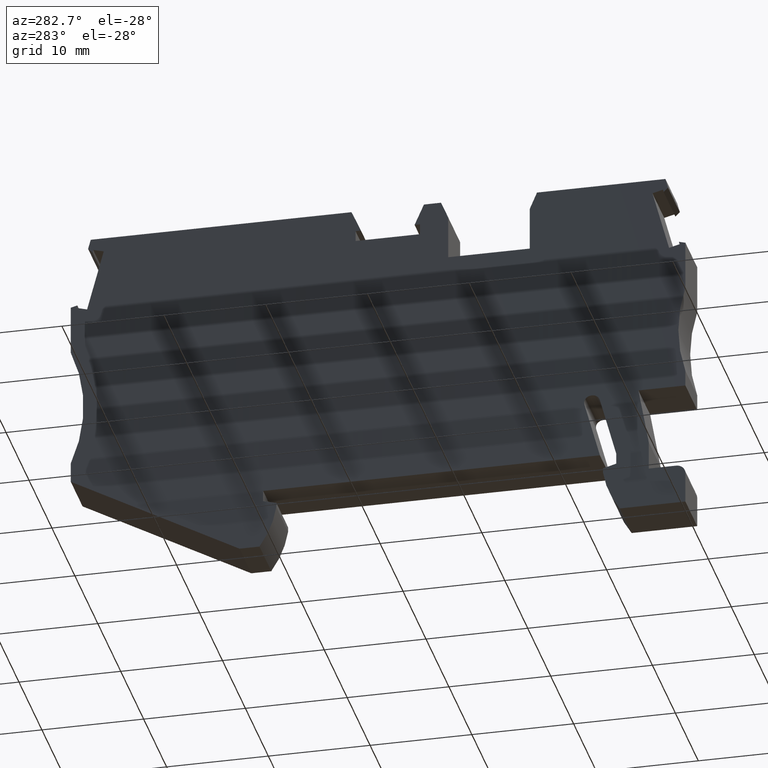
[diagram: clean part render]
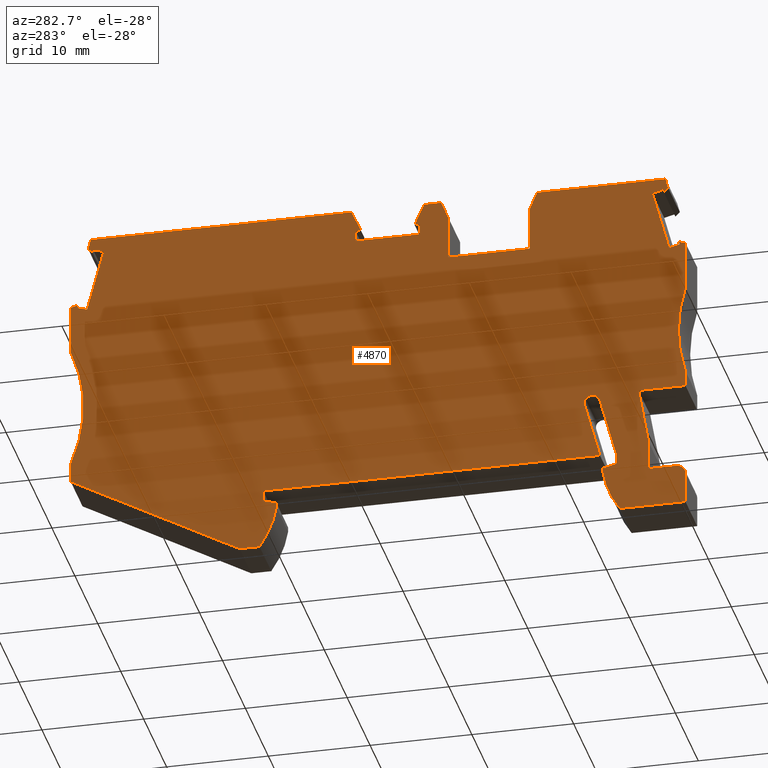
[diagram: same view with one face highlighted and labeled with its STEP entity id]
A machine part, auxiliary view. The second image highlights one B-rep face of the part: STEP entity #4870.
In plain terms, the highlighted planar face has unit normal (-1, 0, -0).
Its self-contained STEP definition (entity closure, byte-faithful):
#10=CARTESIAN_POINT('',(3.5299232216756,-12.7935680000014,48.52));
#20=DIRECTION('',(-0.,-0.,-1.));
#30=DIRECTION('',(0.,-1.,0.));
#40=AXIS2_PLACEMENT_3D('',#10,#20,#30);
#50=PLANE('',#40);
#60=CARTESIAN_POINT('',(-29.7042555077705,-1.07406238320151,
48.5199999999807));
#70=DIRECTION('',(-0.707106781187495,0.7071067811856,
-2.89812213062084E-13));
#80=VECTOR('',#70,1.);
#90=LINE('',#60,#80);
#100=CARTESIAN_POINT('',(-20.2328552587296,-10.545462632217,
48.5199999999846));
#110=VERTEX_POINT('',#100);
#120=CARTESIAN_POINT('',(-20.6655984466218,-10.112719444326,
48.5199999999844));
#130=VERTEX_POINT('',#120);
#140=EDGE_CURVE('',#110,#130,#90,.T.);
#150=ORIENTED_EDGE('',*,*,#140,.T.);
#160=CARTESIAN_POINT('',(-27.8621918696385,-39.0185344922441,
48.5199999999815));
#170=DIRECTION('',(0.258819045101928,0.965925826289227,
1.06078632306589E-13));
#180=VECTOR('',#170,1.);
#190=LINE('',#160,#180);
#200=CARTESIAN_POINT('',(-20.1623768602535,-10.2824336682674,
48.5199999999846));
#210=VERTEX_POINT('',#200);
#220=EDGE_CURVE('',#110,#210,#190,.T.);
#230=ORIENTED_EDGE('',*,*,#220,.F.);
#240=CARTESIAN_POINT('',(-30.4949591286768,-7.51382659371657,
48.5199999999804));
#250=DIRECTION('',(0.9659258262891,-0.258819045102404,
3.95890845368853E-13));
#260=VECTOR('',#250,1.);
#270=LINE('',#240,#260);
#280=CARTESIAN_POINT('',(-19.1288362261241,-10.559370046527,
48.519999999985));
#290=VERTEX_POINT('',#280);
#300=EDGE_CURVE('',#210,#290,#270,.T.);
#310=ORIENTED_EDGE('',*,*,#300,.F.);
#320=CARTESIAN_POINT('',(-26.7897303657733,-39.1502162070814,
48.5199999999819));
#330=DIRECTION('',(0.258819045102715,0.965925826289017,
1.06078632306912E-13));
#340=VECTOR('',#330,1.);
#350=LINE('',#320,#340);
#360=CARTESIAN_POINT('',(-20.7658666863988,-16.6688508978053,
48.5199999999844));
#370=VERTEX_POINT('',#360);
#380=EDGE_CURVE('',#370,#290,#350,.T.);
#390=ORIENTED_EDGE('',*,*,#380,.T.);
#400=CARTESIAN_POINT('',(-31.2733580505129,-13.8533770723114,
48.5199999999801));
#410=DIRECTION('',(-0.96592582628901,0.25881904510274,
-3.95890845368816E-13));
#420=VECTOR('',#410,1.);
#430=LINE('',#400,#420);
#440=CARTESIAN_POINT('',(-21.7994073205272,-16.3919145195456,
48.519999999984));
#450=VERTEX_POINT('',#440);
#460=EDGE_CURVE('',#370,#450,#430,.T.);
#470=ORIENTED_EDGE('',*,*,#460,.F.);
#480=CARTESIAN_POINT('',(-27.862191869674,-39.0185344922397,
48.5199999999815));
#490=DIRECTION('',(0.258819045103217,0.965925826288882,
1.06078632307117E-13));
#500=VECTOR('',#490,1.);
#510=LINE('',#480,#500);
#520=CARTESIAN_POINT('',(-21.7289289220514,-16.1288855555983,
48.519999999984));
#530=VERTEX_POINT('',#520);
#540=EDGE_CURVE('',#450,#530,#510,.T.);
#550=ORIENTED_EDGE('',*,*,#540,.F.);
#560=CARTESIAN_POINT('',(-31.8869546500579,-18.8507203460334,
48.5199999999798));
#570=DIRECTION('',(-0.965925826290942,-0.258819045095529,
-3.95890845369296E-13));
#580=VECTOR('',#570,1.);
#590=LINE('',#560,#580);
#600=CARTESIAN_POINT('',(-22.3678327783232,-16.3000793279225,
48.5199999999837));
#610=VERTEX_POINT('',#600);
#620=EDGE_CURVE('',#530,#610,#590,.T.);
#630=ORIENTED_EDGE('',*,*,#620,.F.);
#640=CARTESIAN_POINT('',(-22.3678327783232,-39.6931569607141,
48.5199999999837));
#650=DIRECTION('',(-2.0122792321331E-15,1.,-6.02658177152644E-25));
#660=VECTOR('',#650,1.);
#670=LINE('',#640,#660);
#680=CARTESIAN_POINT('',(-22.3678327783232,-21.2000000000028,
48.5199999999837));
#690=VERTEX_POINT('',#680);
#700=EDGE_CURVE('',#690,#610,#670,.T.);
#710=ORIENTED_EDGE('',*,*,#700,.T.);
#720=CARTESIAN_POINT('',(-36.6769207995774,-25.7000000000028,
48.5199999999779));
#730=DIRECTION('',(-4.0985636225261E-13,6.0174940938983E-25,1.));
#740=DIRECTION('',(1.,-4.16333634234434E-17,4.0985636225261E-13));
#750=AXIS2_PLACEMENT_3D('',#720,#730,#740);
#760=CIRCLE('',#750,15.);
#770=CARTESIAN_POINT('',(-22.3678327783232,-30.2000000000027,
48.5199999999837));
#780=VERTEX_POINT('',#770);
#790=EDGE_CURVE('',#780,#690,#760,.T.);
#800=ORIENTED_EDGE('',*,*,#790,.T.);
#810=CARTESIAN_POINT('',(-22.3678327783232,-39.6931569607141,
48.5199999999837));
#820=DIRECTION('',(-2.0122792321331E-15,1.,-6.02658177152644E-25));
#830=VECTOR('',#820,1.);
#840=LINE('',#810,#830);
#850=CARTESIAN_POINT('',(-22.3678327783232,-31.8000000000004,
48.5199999999837));
#860=VERTEX_POINT('',#850);
#870=EDGE_CURVE('',#860,#780,#840,.T.);
#880=ORIENTED_EDGE('',*,*,#870,.T.);
#890=CARTESIAN_POINT('',(-33.4769262663789,-31.7999999999984,
48.5199999999792));
#900=DIRECTION('',(-1.,1.71709868546088E-13,-4.0985636225261E-13));
#910=VECTOR('',#900,1.);
#920=LINE('',#890,#910);
#930=CARTESIAN_POINT('',(-17.7559962686777,-31.8000000000011,
48.5199999999856));
#940=VERTEX_POINT('',#930);
#950=EDGE_CURVE('',#940,#860,#920,.T.);
#960=ORIENTED_EDGE('',*,*,#950,.T.);
#970=CARTESIAN_POINT('',(-19.2160104842459,-40.0801520771364,
48.519999999985));
#980=DIRECTION('',(0.17364817766693,0.984807753012208,
7.11708104097703E-14));
#990=VECTOR('',#980,1.);
#1000=LINE('',#970,#990);
#1010=CARTESIAN_POINT('',(-18.7678327783234,-37.5384100015805,
48.5199999999852));
#1020=VERTEX_POINT('',#1010);
#1030=EDGE_CURVE('',#1020,#940,#1000,.T.);
#1040=ORIENTED_EDGE('',*,*,#1030,.T.);
#1050=CARTESIAN_POINT('',(-18.7678327783234,-40.1351813799645,
48.5199999999852));
#1060=DIRECTION('',(4.16333634234434E-17,1.,-6.01812518262247E-25));
#1070=VECTOR('',#1060,1.);
#1080=LINE('',#1050,#1070);
#1090=CARTESIAN_POINT('',(-18.7678327783234,-40.4000000000018,
48.5199999999852));
#1100=VERTEX_POINT('',#1090);
#1110=EDGE_CURVE('',#1100,#1020,#1080,.T.);
#1120=ORIENTED_EDGE('',*,*,#1110,.T.);
#1130=CARTESIAN_POINT('',(-34.5328734901443,-40.4000000000018,
48.5199999999787));
#1140=DIRECTION('',(1.,-4.16333634234434E-17,4.0985636225261E-13));
#1150=VECTOR('',#1140,1.);
#1160=LINE('',#1130,#1150);
#1170=CARTESIAN_POINT('',(-21.4678327783234,-40.4000000000018,
48.5199999999841));
#1180=VERTEX_POINT('',#1170);
#1190=EDGE_CURVE('',#1180,#1100,#1160,.T.);
#1200=ORIENTED_EDGE('',*,*,#1190,.T.);
#1210=CARTESIAN_POINT('',(-21.4678327783234,-41.3000000000018,
48.5199999999841));
#1220=DIRECTION('',(4.0985636225261E-13,-6.0174940938983E-25,-1.));
#1230=DIRECTION('',(-0.992546151641322,0.121869343405148,
-4.06801355079613E-13));
#1240=AXIS2_PLACEMENT_3D('',#1210,#1220,#1230);
#1250=CIRCLE('',#1240,0.9);
#1260=CARTESIAN_POINT('',(-22.3678327783234,-41.3000000000018,
48.5199999999837));
#1270=VERTEX_POINT('',#1260);
#1280=EDGE_CURVE('',#1270,#1180,#1250,.T.);
#1290=ORIENTED_EDGE('',*,*,#1280,.T.);
#1300=CARTESIAN_POINT('',(-22.3678327783234,-39.6931569607141,
48.5199999999837));
#1310=DIRECTION('',(4.16333634234434E-17,1.,-6.01812518262247E-25));
#1320=VECTOR('',#1310,1.);
#1330=LINE('',#1300,#1320);
#1340=CARTESIAN_POINT('',(-22.3678327783234,-44.4000000000017,
48.5199999999837));
#1350=VERTEX_POINT('',#1340);
#1360=EDGE_CURVE('',#1350,#1270,#1330,.T.);
#1370=ORIENTED_EDGE('',*,*,#1360,.T.);
#1380=CARTESIAN_POINT('',(-35.024011733756,-44.4000000000022,
48.5199999999785));
#1390=DIRECTION('',(-1.,-3.81777942592976E-14,-4.0985636225261E-13));
#1400=VECTOR('',#1390,1.);
#1410=LINE('',#1380,#1400);
#1420=CARTESIAN_POINT('',(-15.9267764314559,-44.4000000000014,
48.5199999999864));
#1430=VERTEX_POINT('',#1420);
#1440=EDGE_CURVE('',#1430,#1350,#1410,.T.);
#1450=ORIENTED_EDGE('',*,*,#1440,.T.);
#1460=CARTESIAN_POINT('',(-23.6618054576996,-38.8846282117038,
48.5199999999832));
#1470=DIRECTION('',(-4.0985636225261E-13,6.0174940938983E-25,1.));
#1480=DIRECTION('',(1.,-4.16333634234434E-17,4.0985636225261E-13));
#1490=AXIS2_PLACEMENT_3D('',#1460,#1470,#1480);
#1500=CIRCLE('',#1490,9.499999999999);
#1510=CARTESIAN_POINT('',(-14.2678327783232,-40.3000000000023,
48.519999999987));
#1520=VERTEX_POINT('',#1510);
#1530=EDGE_CURVE('',#1430,#1520,#1500,.T.);
#1540=ORIENTED_EDGE('',*,*,#1530,.F.);
#1550=CARTESIAN_POINT('',(-14.2678327783235,-40.6877119040276,
48.519999999987));
#1560=DIRECTION('',(-4.16333634234434E-17,-1.,6.01812518262247E-25));
#1570=VECTOR('',#1560,1.);
#1580=LINE('',#1550,#1570);
#1590=CARTESIAN_POINT('',(-14.2678327783234,-39.8483339501618,
48.519999999987));
#1600=VERTEX_POINT('',#1590);
#1610=EDGE_CURVE('',#1600,#1520,#1580,.T.);
#1620=ORIENTED_EDGE('',*,*,#1610,.T.);
#1630=CARTESIAN_POINT('',(-33.8218110628268,-34.6088612600111,
48.519999999979));
#1640=DIRECTION('',(0.96592582628904,-0.258819045102626,
3.95890845368828E-13));
#1650=VECTOR('',#1640,1.);
#1660=LINE('',#1630,#1650);
#1670=CARTESIAN_POINT('',(-15.5678327783228,-39.5000000000013,
48.5199999999865));
#1680=VERTEX_POINT('',#1670);
#1690=EDGE_CURVE('',#1680,#1600,#1660,.T.);
#1700=ORIENTED_EDGE('',*,*,#1690,.T.);
#1710=CARTESIAN_POINT('',(-15.5678327783228,-40.5280919748539,
48.5199999999865));
#1720=DIRECTION('',(-4.16333634234434E-17,-1.,6.01812518262247E-25));
#1730=VECTOR('',#1720,1.);
#1740=LINE('',#1710,#1730);
#1750=CARTESIAN_POINT('',(-15.5678327783228,-38.3999999999967,
48.5199999999865));
#1760=VERTEX_POINT('',#1750);
#1770=EDGE_CURVE('',#1760,#1680,#1740,.T.);
#1780=ORIENTED_EDGE('',*,*,#1770,.T.);
#1790=CARTESIAN_POINT('',(-16.1198905892173,-40.4603077989502,
48.5199999999863));
#1800=DIRECTION('',(0.258819045103168,0.965925826288895,
1.06078632307097E-13));
#1810=VECTOR('',#1800,1.);
#1820=LINE('',#1790,#1810);
#1830=CARTESIAN_POINT('',(-13.9582471789261,-32.3929447639187,
48.5199999999872));
#1840=VERTEX_POINT('',#1830);
#1850=EDGE_CURVE('',#1760,#1840,#1820,.T.);
#1860=ORIENTED_EDGE('',*,*,#1850,.F.);
#1870=CARTESIAN_POINT('',(-13.1855065178943,-32.6000000000015,
48.5199999999875));
#1880=DIRECTION('',(-4.0985636225261E-13,6.0174940938983E-25,1.));
#1890=DIRECTION('',(1.,-4.16333634234434E-17,4.0985636225261E-13));
#1900=AXIS2_PLACEMENT_3D('',#1870,#1880,#1890);
#1910=CIRCLE('',#1900,0.799999999999994);
#1920=CARTESIAN_POINT('',(-12.9558416625091,-31.8336749683074,
48.5199999999876));
#1930=VERTEX_POINT('',#1920);
#1940=EDGE_CURVE('',#1930,#1840,#1910,.T.);
#1950=ORIENTED_EDGE('',*,*,#1940,.T.);
#1960=CARTESIAN_POINT('',(-13.1156930297903,-32.5151788497187,
48.5199999999875));
#1970=DIRECTION('',(-4.0985636225261E-13,6.0174940938983E-25,1.));
#1980=DIRECTION('',(1.,-4.16333634234434E-17,4.0985636225261E-13));
#1990=AXIS2_PLACEMENT_3D('',#1960,#1970,#1980);
#2000=CIRCLE('',#1990,0.700000000000186);
#2010=CARTESIAN_POINT('',(-12.4395449513857,-32.6963521812913,
48.5199999999878));
#2020=VERTEX_POINT('',#2010);
#2030=EDGE_CURVE('',#2020,#1930,#2000,.T.);
#2040=ORIENTED_EDGE('',*,*,#2030,.T.);
#2050=CARTESIAN_POINT('',(-14.5708539323043,-40.6505055846918,
48.5199999999869));
#2060=DIRECTION('',(0.258819045102995,0.965925826288942,
1.06078632307026E-13));
#2070=VECTOR('',#2060,1.);
#2080=LINE('',#2050,#2070);
#2090=CARTESIAN_POINT('',(-13.9678327783236,-38.4000000000014,
48.5199999999872));
#2100=VERTEX_POINT('',#2090);
#2110=EDGE_CURVE('',#2100,#2020,#2080,.T.);
#2120=ORIENTED_EDGE('',*,*,#2110,.T.);
#2130=CARTESIAN_POINT('',(-34.2873043683385,-38.4000000000014,
48.5199999999788));
#2140=DIRECTION('',(-1.,4.16333634234434E-17,-4.0985636225261E-13));
#2150=VECTOR('',#2140,1.);
#2160=LINE('',#2130,#2150);
#2170=CARTESIAN_POINT('',(19.1321672216769,-38.4000000000014,
48.5200000000007));
#2180=VERTEX_POINT('',#2170);
#2190=EDGE_CURVE('',#2180,#2100,#2160,.T.);
#2200=ORIENTED_EDGE('',*,*,#2190,.T.);
#2210=CARTESIAN_POINT('',(19.1321672216769,-44.7887162381846,
48.5200000000007));
#2220=DIRECTION('',(4.16333634234434E-17,1.,-6.01812518262247E-25));
#2230=VECTOR('',#2220,1.);
#2240=LINE('',#2210,#2230);
#2250=CARTESIAN_POINT('',(19.1321672216769,-39.5000000000013,
48.5200000000007));
#2260=VERTEX_POINT('',#2250);
#2270=EDGE_CURVE('',#2260,#2180,#2240,.T.);
#2280=ORIENTED_EDGE('',*,*,#2270,.T.);
#2290=CARTESIAN_POINT('',(-36.244252933995,-54.3380670604362,
48.519999999978));
#2300=DIRECTION('',(0.965925826289086,0.258819045102457,
3.95890845368535E-13));
#2310=VECTOR('',#2300,1.);
#2320=LINE('',#2290,#2310);
#2330=CARTESIAN_POINT('',(17.8321672216767,-39.8483339501617,
48.5200000000002));
#2340=VERTEX_POINT('',#2330);
#2350=EDGE_CURVE('',#2340,#2260,#2320,.T.);
#2360=ORIENTED_EDGE('',*,*,#2350,.T.);
#2370=CARTESIAN_POINT('',(17.8321672216734,-44.6290963090104,
48.5200000000002));
#2380=DIRECTION('',(6.90267287772883E-13,1.,-3.18920686762751E-25));
#2390=VECTOR('',#2380,1.);
#2400=LINE('',#2370,#2390);
#2410=CARTESIAN_POINT('',(17.8321672216764,-40.300000000002,
48.5200000000002));
#2420=VERTEX_POINT('',#2410);
#2430=EDGE_CURVE('',#2420,#2340,#2400,.T.);
#2440=ORIENTED_EDGE('',*,*,#2430,.T.);
#2450=CARTESIAN_POINT('',(27.2261399010528,-38.8846282117038,
48.520000000004));
#2460=DIRECTION('',(4.0985636225261E-13,-6.0174940938983E-25,-1.));
#2470=DIRECTION('',(-1.,4.16333634234434E-17,-4.0985636225261E-13));
#2480=AXIS2_PLACEMENT_3D('',#2450,#2460,#2470);
#2490=CIRCLE('',#2480,9.499999999999);
#2500=CARTESIAN_POINT('',(19.4911108748092,-44.4000000000014,
48.5200000000009));
#2510=VERTEX_POINT('',#2500);
#2520=EDGE_CURVE('',#2510,#2420,#2490,.T.);
#2530=ORIENTED_EDGE('',*,*,#2520,.T.);
#2540=CARTESIAN_POINT('',(-35.0240117337555,-44.3999999999983,
48.5199999999785));
#2550=DIRECTION('',(-1.,5.79536418854332E-14,-4.0985636225261E-13));
#2560=VECTOR('',#2550,1.);
#2570=LINE('',#2540,#2560);
#2580=CARTESIAN_POINT('',(21.449808277714,-44.4000000000015,
48.5200000000017));
#2590=VERTEX_POINT('',#2580);
#2600=EDGE_CURVE('',#2590,#2510,#2570,.T.);
#2610=ORIENTED_EDGE('',*,*,#2600,.T.);
#2620=CARTESIAN_POINT('',(-39.1523305504351,-78.0224586081626,
48.5199999999768));
#2630=DIRECTION('',(-0.874435210897321,-0.485142311021166,
-3.58392834563678E-13));
#2640=VECTOR('',#2630,1.);
#2650=LINE('',#2620,#2640);
#2660=CARTESIAN_POINT('',(38.0321672216769,-35.2,48.5200000000085));
#2670=VERTEX_POINT('',#2660);
#2680=EDGE_CURVE('',#2670,#2590,#2650,.T.);
#2690=ORIENTED_EDGE('',*,*,#2680,.T.);
#2700=CARTESIAN_POINT('',(38.0321672216769,-47.1093444392495,
48.5200000000085));
#2710=DIRECTION('',(-1.2490009027033E-16,-1.,6.01780963826038E-25));
#2720=VECTOR('',#2710,1.);
#2730=LINE('',#2700,#2720);
#2740=CARTESIAN_POINT('',(38.0321672216769,-33.2000000000027,
48.5200000000085));
#2750=VERTEX_POINT('',#2740);
#2760=EDGE_CURVE('',#2750,#2670,#2730,.T.);
#2770=ORIENTED_EDGE('',*,*,#2760,.T.);
#2780=CARTESIAN_POINT('',(51.7798943065444,-27.2000000000027,
48.5200000000141));
#2790=DIRECTION('',(-4.0985636225261E-13,6.0174940938983E-25,1.));
#2800=DIRECTION('',(1.,-4.16333634234434E-17,4.0985636225261E-13));
#2810=AXIS2_PLACEMENT_3D('',#2780,#2790,#2800);
#2820=CIRCLE('',#2810,15.);
#2830=CARTESIAN_POINT('',(38.032167221677,-21.2000000000025,
48.5200000000085));
#2840=VERTEX_POINT('',#2830);
#2850=EDGE_CURVE('',#2840,#2750,#2820,.T.);
#2860=ORIENTED_EDGE('',*,*,#2850,.T.);
#2870=CARTESIAN_POINT('',(38.032167221677,-47.1093444392495,
48.5200000000085));
#2880=DIRECTION('',(-9.71445146547012E-17,-1.,6.01793585600522E-25));
#2890=VECTOR('',#2880,1.);
#2900=LINE('',#2870,#2890);
#2910=CARTESIAN_POINT('',(38.032167221677,-16.3000793279236,
48.5200000000085));
#2920=VERTEX_POINT('',#2910);
#2930=EDGE_CURVE('',#2920,#2840,#2900,.T.);
#2940=ORIENTED_EDGE('',*,*,#2930,.T.);
#2950=CARTESIAN_POINT('',(-29.3566806060764,1.75670802586475,
48.5199999999809));
#2960=DIRECTION('',(-0.965925826290939,0.25881904509554,
-3.95890845369606E-13));
#2970=VECTOR('',#2960,1.);
#2980=LINE('',#2950,#2970);
#2990=CARTESIAN_POINT('',(37.3932633654051,-16.1288855555993,
48.5200000000082));
#3000=VERTEX_POINT('',#2990);
#3010=EDGE_CURVE('',#2920,#3000,#2980,.T.);
#3020=ORIENTED_EDGE('',*,*,#3010,.F.);
#3030=CARTESIAN_POINT('',(45.9551175602499,-48.0821604176267,
48.5200000000117));
#3040=DIRECTION('',(0.258819045103503,-0.965925826288806,
1.06078632308397E-13));
#3050=VECTOR('',#3040,1.);
#3060=LINE('',#3030,#3050);
#3070=CARTESIAN_POINT('',(37.4637417638807,-16.3919145195451,
48.5200000000082));
#3080=VERTEX_POINT('',#3070);
#3090=EDGE_CURVE('',#3000,#3080,#3060,.T.);
#3100=ORIENTED_EDGE('',*,*,#3090,.F.);
#3110=CARTESIAN_POINT('',(-33.9340399848912,-35.5228924805422,
48.519999999979));
#3120=DIRECTION('',(-0.965925826288933,-0.258819045103026,
-3.95890845368473E-13));
#3130=VECTOR('',#3120,1.);
#3140=LINE('',#3110,#3130);
#3150=CARTESIAN_POINT('',(36.4302011297517,-16.6688508978053,
48.5200000000078));
#3160=VERTEX_POINT('',#3150);
#3170=EDGE_CURVE('',#3080,#3160,#3140,.T.);
#3180=ORIENTED_EDGE('',*,*,#3170,.F.);
#3190=CARTESIAN_POINT('',(44.8096873663869,-47.9415192742283,
48.5200000000113));
#3200=DIRECTION('',(-0.258819045102705,0.965925826289019,
-1.0607863230807E-13));
#3210=VECTOR('',#3200,1.);
#3220=LINE('',#3190,#3210);
#3230=CARTESIAN_POINT('',(34.7931706694773,-10.5593700465282,
48.5200000000071));
#3240=VERTEX_POINT('',#3230);
#3250=EDGE_CURVE('',#3160,#3240,#3220,.T.);
#3260=ORIENTED_EDGE('',*,*,#3250,.F.);
#3270=CARTESIAN_POINT('',(-33.1026799550045,-28.7520083907735,
48.5199999999793));
#3280=DIRECTION('',(0.9659258262891,0.258819045102404,
3.95890845368541E-13));
#3290=VECTOR('',#3280,1.);
#3300=LINE('',#3270,#3290);
#3310=CARTESIAN_POINT('',(35.8267113036075,-10.2824336682684,
48.5200000000076));
#3320=VERTEX_POINT('',#3310);
#3330=EDGE_CURVE('',#3240,#3320,#3300,.T.);
#3340=ORIENTED_EDGE('',*,*,#3330,.F.);
#3350=CARTESIAN_POINT('',(45.9551175601883,-48.0821604176192,
48.5200000000117));
#3360=DIRECTION('',(0.258819045101928,-0.965925826289227,
1.06078632307752E-13));
#3370=VECTOR('',#3360,1.);
#3380=LINE('',#3350,#3370);
#3390=CARTESIAN_POINT('',(35.8971897020836,-10.5454626322177,
48.5200000000076));
#3400=VERTEX_POINT('',#3390);
#3410=EDGE_CURVE('',#3320,#3400,#3380,.T.);
#3420=ORIENTED_EDGE('',*,*,#3410,.F.);
#3430=CARTESIAN_POINT('',(3.56530628123769,-42.8773460529762,
48.5199999999943));
#3440=DIRECTION('',(0.707106781187503,0.707106781185593,
2.89812213061237E-13));
#3450=VECTOR('',#3440,1.);
#3460=LINE('',#3430,#3450);
#3470=CARTESIAN_POINT('',(36.3299328899757,-10.1127194443267,
48.5200000000078));
#3480=VERTEX_POINT('',#3470);
#3490=EDGE_CURVE('',#3400,#3480,#3460,.T.);
#3500=ORIENTED_EDGE('',*,*,#3490,.F.);
#3510=CARTESIAN_POINT('',(46.5224801796075,-48.1518237877173,
48.520000000012));
#3520=DIRECTION('',(0.258819045102926,-0.96592582628896,
1.06078632308161E-13));
#3530=VECTOR('',#3520,1.);
#3540=LINE('',#3510,#3530);
#3550=CARTESIAN_POINT('',(36.0719729923311,-9.15000000000319,
48.5200000000077));
#3560=VERTEX_POINT('',#3550);
#3570=EDGE_CURVE('',#3560,#3480,#3540,.T.);
#3580=ORIENTED_EDGE('',*,*,#3570,.T.);
#3590=CARTESIAN_POINT('',(-30.6958559619287,-9.1500000000032,
48.5199999999803));
#3600=DIRECTION('',(1.,-4.16333634234434E-17,4.0985636225261E-13));
#3610=VECTOR('',#3600,1.);
#3620=LINE('',#3590,#3610);
#3630=CARTESIAN_POINT('',(10.4418215966539,-9.15000000000318,
48.5199999999972));
#3640=VERTEX_POINT('',#3630);
#3650=EDGE_CURVE('',#3640,#3560,#3620,.T.);
#3660=ORIENTED_EDGE('',*,*,#3650,.T.);
#3670=CARTESIAN_POINT('',(-3.97307229660225,-41.9517495493763,
48.5199999999913));
#3680=DIRECTION('',(0.402320578212711,0.915498854366618,
1.64893648645078E-13));
#3690=VECTOR('',#3680,1.);
#3700=LINE('',#3670,#3690);
#3710=CARTESIAN_POINT('',(9.51676875459103,-11.2550000000016,
48.5199999999968));
#3720=VERTEX_POINT('',#3710);
#3730=EDGE_CURVE('',#3720,#3640,#3700,.T.);
#3740=ORIENTED_EDGE('',*,*,#3730,.T.);
#3750=CARTESIAN_POINT('',(-30.9543174626292,-11.2550000000016,
48.5199999999802));
#3760=DIRECTION('',(1.,-4.16333634234434E-17,4.0985636225261E-13));
#3770=VECTOR('',#3760,1.);
#3780=LINE('',#3750,#3770);
#3790=CARTESIAN_POINT('',(10.0446672216781,-11.2550000000016,
48.519999999997));
#3800=VERTEX_POINT('',#3790);
#3810=EDGE_CURVE('',#3720,#3800,#3780,.T.);
#3820=ORIENTED_EDGE('',*,*,#3810,.F.);
#3830=CARTESIAN_POINT('',(10.044667221678,-43.6729115409796,
48.519999999997));
#3840=DIRECTION('',(-4.16333634234434E-17,-1.,6.01812518262247E-25));
#3850=VECTOR('',#3840,1.);
#3860=LINE('',#3830,#3850);
#3870=CARTESIAN_POINT('',(10.0446672216781,-12.3250000000016,
48.519999999997));
#3880=VERTEX_POINT('',#3870);
#3890=EDGE_CURVE('',#3800,#3880,#3860,.T.);
#3900=ORIENTED_EDGE('',*,*,#3890,.F.);
#3910=CARTESIAN_POINT('',(-31.085696942795,-12.3249999999992,
48.5199999999801));
#3920=DIRECTION('',(-1.,5.80230308244722E-14,-4.0985636225261E-13));
#3930=VECTOR('',#3920,1.);
#3940=LINE('',#3910,#3930);
#3950=CARTESIAN_POINT('',(3.71966722167793,-12.3250000000012,
48.5199999999944));
#3960=VERTEX_POINT('',#3950);
#3970=EDGE_CURVE('',#3880,#3960,#3940,.T.);
#3980=ORIENTED_EDGE('',*,*,#3970,.F.);
#3990=CARTESIAN_POINT('',(3.71966722167791,-42.8962991932687,
48.5199999999944));
#4000=DIRECTION('',(4.16333634234434E-17,1.,-6.01812518262247E-25));
#4010=VECTOR('',#4000,1.);
#4020=LINE('',#3990,#4010);
#4030=CARTESIAN_POINT('',(3.71966722167794,-11.2550000000016,
48.5199999999944));
#4040=VERTEX_POINT('',#4030);
#4050=EDGE_CURVE('',#3960,#4040,#4020,.T.);
#4060=ORIENTED_EDGE('',*,*,#4050,.F.);
#4070=CARTESIAN_POINT('',(-30.9543174626292,-11.2550000000016,
48.5199999999802));
#4080=DIRECTION('',(1.,-4.16333634234434E-17,4.0985636225261E-13));
#4090=VECTOR('',#4080,1.);
#4100=LINE('',#4070,#4090);
#4110=CARTESIAN_POINT('',(4.24756568876353,-11.2550000000016,
48.5199999999946));
#4120=VERTEX_POINT('',#4110);
#4130=EDGE_CURVE('',#4040,#4120,#4100,.T.);
#4140=ORIENTED_EDGE('',*,*,#4130,.F.);
#4150=CARTESIAN_POINT('',(18.9756823710991,-44.7695023145185,
48.5200000000007));
#4160=DIRECTION('',(0.402320578211921,-0.915498854366966,
1.64893648645855E-13));
#4170=VECTOR('',#4160,1.);
#4180=LINE('',#4150,#4170);
#4190=CARTESIAN_POINT('',(3.32251284670286,-9.15000000000321,
48.5199999999942));
#4200=VERTEX_POINT('',#4190);
#4210=EDGE_CURVE('',#4200,#4120,#4180,.T.);
#4220=ORIENTED_EDGE('',*,*,#4210,.T.);
#4230=CARTESIAN_POINT('',(-30.6958559619292,-9.15000000000733,
48.5199999999803));
#4240=DIRECTION('',(-1.,-1.21000431896334E-13,-4.0985636225261E-13));
#4250=VECTOR('',#4240,1.);
#4260=LINE('',#4230,#4250);
#4270=CARTESIAN_POINT('',(1.65066694095809,-9.15000000000341,
48.5199999999936));
#4280=VERTEX_POINT('',#4270);
#4290=EDGE_CURVE('',#4200,#4280,#4260,.T.);
#4300=ORIENTED_EDGE('',*,*,#4290,.F.);
#4310=CARTESIAN_POINT('',(-11.8063846804754,-40.9899397279071,
48.519999999988));
#4320=DIRECTION('',(-0.389303997086923,-0.921109330021223,
-1.59558720055893E-13));
#4330=VECTOR('',#4320,1.);
#4340=LINE('',#4310,#4330);
#4350=CARTESIAN_POINT('',(0.932167221676593,-10.8500000000035,
48.5199999999933));
#4360=VERTEX_POINT('',#4350);
#4370=EDGE_CURVE('',#4280,#4360,#4340,.T.);
#4380=ORIENTED_EDGE('',*,*,#4370,.F.);
#4390=CARTESIAN_POINT('',(0.932167221676771,-42.5540372297518,
48.5199999999933));
#4400=DIRECTION('',(-5.49560397189452E-15,1.,-6.04078126782042E-25));
#4410=VECTOR('',#4400,1.);
#4420=LINE('',#4390,#4410);
#4430=CARTESIAN_POINT('',(0.932167221676622,-15.1500000000016,
48.5199999999933));
#4440=VERTEX_POINT('',#4430);
#4450=EDGE_CURVE('',#4440,#4360,#4420,.T.);
#4460=ORIENTED_EDGE('',*,*,#4450,.T.);
#4470=CARTESIAN_POINT('',(-31.432563327346,-15.1500000000016,
48.51999999998));
#4480=DIRECTION('',(-1.,4.16333634234434E-17,-4.0985636225261E-13));
#4490=VECTOR('',#4480,1.);
#4500=LINE('',#4470,#4490);
#4510=CARTESIAN_POINT('',(-7.06783277832309,-15.1500000000016,
48.51999999999));
#4520=VERTEX_POINT('',#4510);
#4530=EDGE_CURVE('',#4440,#4520,#4500,.T.);
#4540=ORIENTED_EDGE('',*,*,#4530,.F.);
#4550=CARTESIAN_POINT('',(-7.06783277832302,-41.5717607425285,
48.51999999999));
#4560=DIRECTION('',(2.72004641033163E-15,-1.,6.02948477965766E-25));
#4570=VECTOR('',#4560,1.);
#4580=LINE('',#4550,#4570);
#4590=CARTESIAN_POINT('',(-7.06783277832313,-10.8500000000033,
48.51999999999));
#4600=VERTEX_POINT('',#4590);
#4610=EDGE_CURVE('',#4600,#4520,#4580,.T.);
#4620=ORIENTED_EDGE('',*,*,#4610,.T.);
#4630=CARTESIAN_POINT('',(6.62732765293345,-43.2533150025752,
48.5199999999956));
#4640=DIRECTION('',(-0.389303997086923,0.921109330021223,
-1.59558720057001E-13));
#4650=VECTOR('',#4640,1.);
#4660=LINE('',#4630,#4650);
#4670=CARTESIAN_POINT('',(-7.78633249760459,-9.15000000000329,
48.5199999999897));
#4680=VERTEX_POINT('',#4670);
#4690=EDGE_CURVE('',#4600,#4680,#4660,.T.);
#4700=ORIENTED_EDGE('',*,*,#4690,.F.);
#4710=CARTESIAN_POINT('',(-30.6958559619284,-9.15000000000042,
48.5199999999803));
#4720=DIRECTION('',(-1.,1.26162968960841E-13,-4.0985636225261E-13));
#4730=VECTOR('',#4720,1.);
#4740=LINE('',#4710,#4730);
#4750=CARTESIAN_POINT('',(-20.407638548977,-9.15000000000171,
48.5199999999845));
#4760=VERTEX_POINT('',#4750);
#4770=EDGE_CURVE('',#4680,#4760,#4740,.T.);
#4780=ORIENTED_EDGE('',*,*,#4770,.F.);
#4790=CARTESIAN_POINT('',(-28.3934111192599,-38.9533089699361,
48.5199999999812));
#4800=DIRECTION('',(-0.258819045102936,-0.965925826288957,
-1.06078632307002E-13));
#4810=VECTOR('',#4800,1.);
#4820=LINE('',#4790,#4810);
#4830=EDGE_CURVE('',#4760,#130,#4820,.T.);
#4840=ORIENTED_EDGE('',*,*,#4830,.F.);
#4850=EDGE_LOOP('',(#4840,#4780,#4700,#4620,#4540,#4460,#4380,#4300,
#4220,#4140,#4060,#3980,#3900,#3820,#3740,#3660,#3580,#3500,#3420,#3340,
#3260,#3180,#3100,#3020,#2940,#2860,#2770,#2690,#2610,#2530,#2440,#2360,
#2280,#2200,#2120,#2040,#1950,#1860,#1780,#1700,#1620,#1540,#1450,#1370,
#1290,#1200,#1120,#1040,#960,#880,#800,#710,#630,#550,#470,#390,#310,
#230,#150));
#4860=FACE_OUTER_BOUND('',#4850,.T.);
#4870=ADVANCED_FACE('',(#4860),#50,.T.);